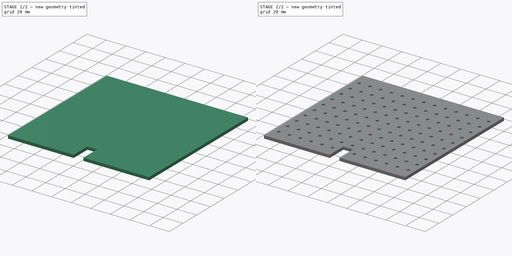
[diagram: build sequence overview — one tinted view per stage of 2, left to right]
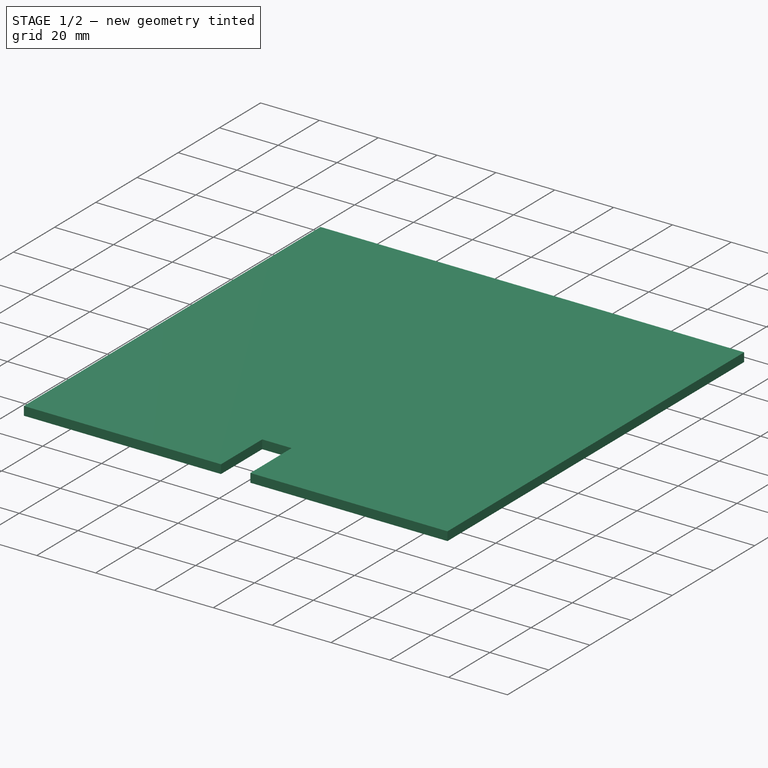
[diagram: stage 1 of 2 — iso view after this stage's code; geometry added in this stage tinted green]
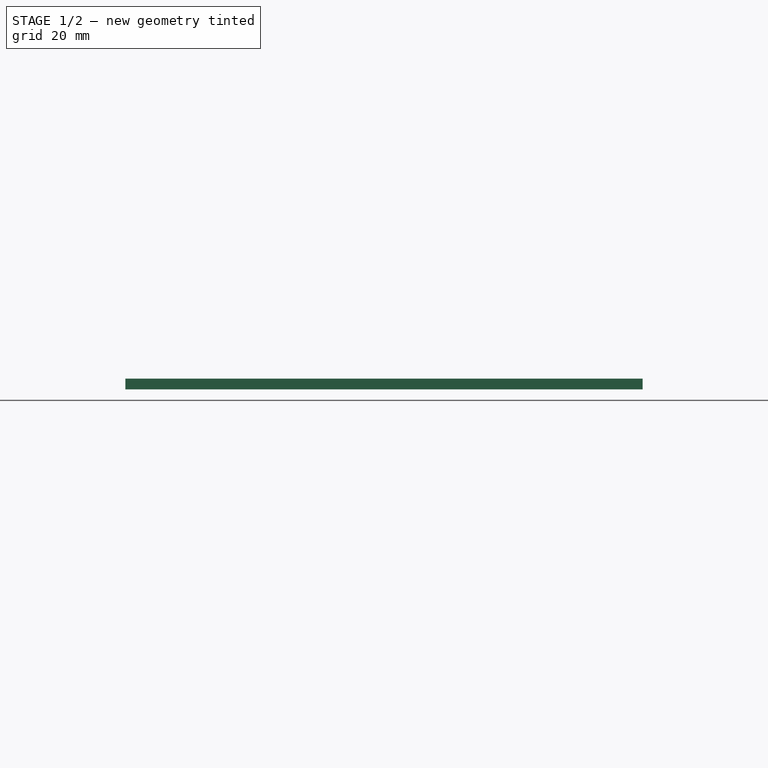
[diagram: stage 1 of 2 — front view after this stage's code; geometry added in this stage tinted green]
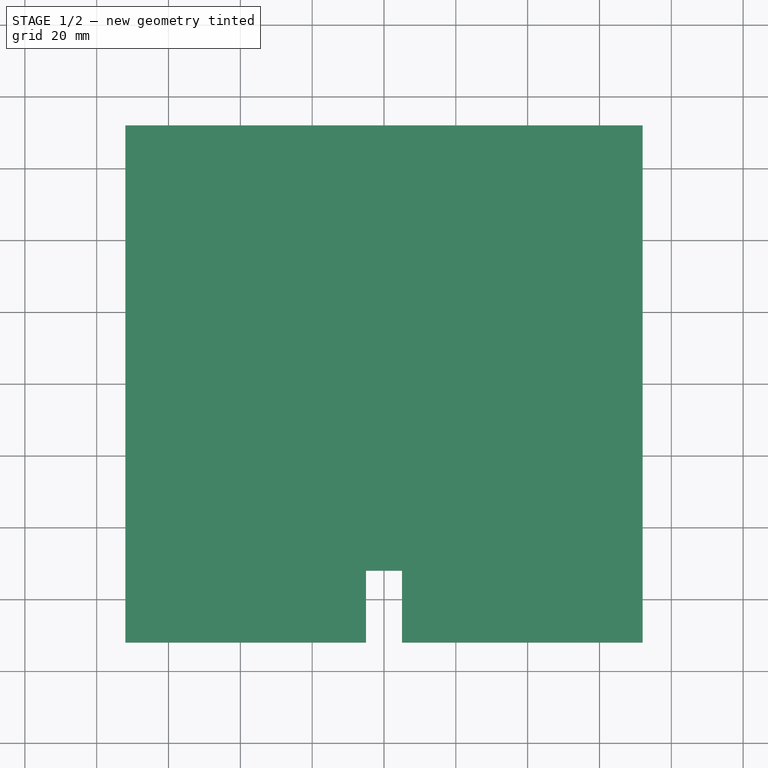
[diagram: stage 1 of 2 — top view after this stage's code; geometry added in this stage tinted green]
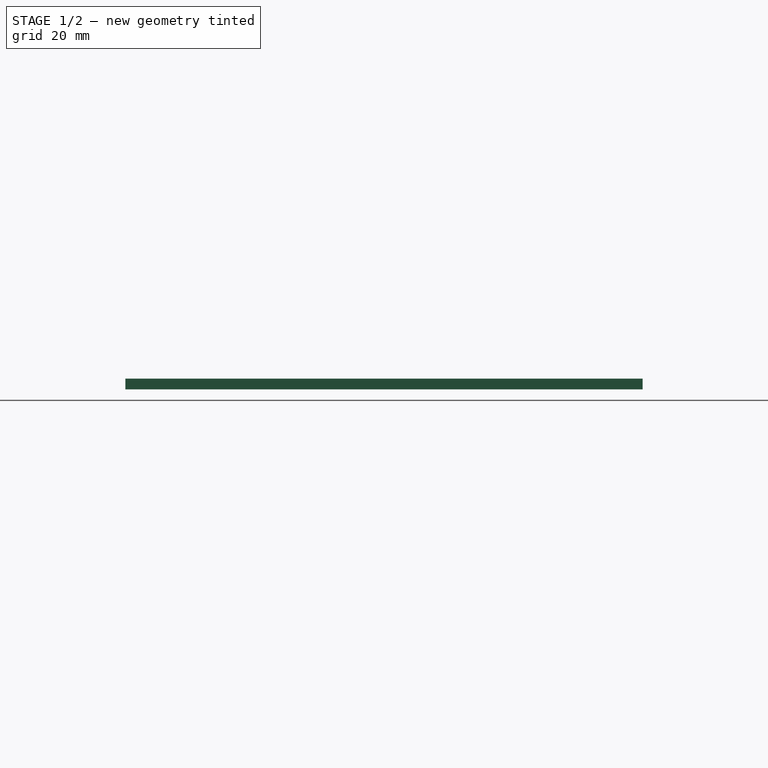
[diagram: stage 1 of 2 — right view after this stage's code; geometry added in this stage tinted green]
FCSTD DOCUMENT  (FreeCAD 1.0R39285 (Git))
Label: pi holderv2
License: All rights reserved
LicenseURL: https://en.wikipedia.org/wiki/All_rights_reserved
objects: Sketcher::SketchObject×3, Measure::MeasureDistance×3, PartDesign::Pocket×2, PartDesign::LinearPattern×2, PartDesign::Pad×1, PartDesign::MultiTransform×1, PartDesign::Body×1, App::DocumentObjectGroup×1, Measure::MeasurePython×1
note: 22 computed .brp shape members not serialized (recipe doc carries the construction recipe); baked Part::Feature solids carry a one-line shape summary decoded from their .brp

FEATURE [Sketcher::SketchObject] Sketch  label="Base"
  ArcFitTolerance = 1e-06
  AttachmentSupport = -> [XY_Plane]
  FullyConstrained = true
  MakeInternals = false
  MapMode = 5
  sketch-geometry (5):
    g0: LineSegment StartX=-72 StartY=-72 StartZ=0 EndX=72 EndY=-72 EndZ=0
    g1: LineSegment StartX=72 StartY=-72 StartZ=0 EndX=72 EndY=72 EndZ=0
    g2: LineSegment StartX=72 StartY=72 StartZ=0 EndX=-72 EndY=72 EndZ=0
    g3: LineSegment StartX=-72 StartY=72 StartZ=0 EndX=-72 EndY=-72 EndZ=0
    g4: GeomPoint [constr] X=0 Y=0 Z=0
  constraints (12):
    c: Coincident(g0,g1)
    c: Coincident(g1,g2)
    c: Coincident(g2,g3)
    c: Coincident(g3,g0)
    c: Horizontal(g0)
    c: Horizontal(g2)
    c: Vertical(g1)
    c: Vertical(g3)
    c: Symmetric(g2,g0,g4)
    c: Distance(g1,g3) = 144
    c: Distance(g0,g2) = 144
    c: Coincident(g4,g-1)
FEATURE [PartDesign::Pad] Pad
  Direction = (0,0,1)
  Length = 3
  Length2 = 10
  Profile = -> Sketch
  ReferenceAxis = -> Sketch [N_Axis]
  Refine = true
  Suppressed = false
  Type = 0
FEATURE [Sketcher::SketchObject] Sketch003  label="Hole for cabels"
  ArcFitTolerance = 1e-06
  AttachmentSupport = -> [Pad]
  ExternalGeometry = -> [Pad]
  FullyConstrained = true
  MakeInternals = false
  MapMode = 5
  Placement = pos=(0,0,3) rot=(0,0,1;0rad)
  sketch-geometry (5):
    g0: LineSegment StartX=-5 StartY=-72 StartZ=0 EndX=5 EndY=-72 EndZ=0
    g1: LineSegment StartX=5 StartY=-72 StartZ=0 EndX=5 EndY=-52 EndZ=0
    g2: LineSegment StartX=5 StartY=-52 StartZ=0 EndX=-5 EndY=-52 EndZ=0
    g3: LineSegment StartX=-5 StartY=-52 StartZ=0 EndX=-5 EndY=-72 EndZ=0
    g4: GeomPoint [constr] X=0 Y=-62 Z=0
  constraints (13):
    c: Coincident(g0,g1)
    c: Coincident(g1,g2)
    c: Coincident(g2,g3)
    c: Coincident(g3,g0)
    c: Horizontal(g0)
    c: Horizontal(g2)
    c: Vertical(g1)
    c: Vertical(g3)
    c: Symmetric(g2,g0,g4)
    c: Distance(g1,g3) = 10
    c: Distance(g0,g2) = 20
    c: PointOnObject(g4,g-2)
    c: PointOnObject(g0,g-3)
FEATURE [PartDesign::Pocket] Pocket
  BaseFeature = -> Pad
  Direction = (0,0,-1)
  Length = 5
  Length2 = 5
  Profile = -> Sketch003
  ReferenceAxis = -> Sketch003 [N_Axis]
  Refine = true
  Suppressed = false
  Type = 1
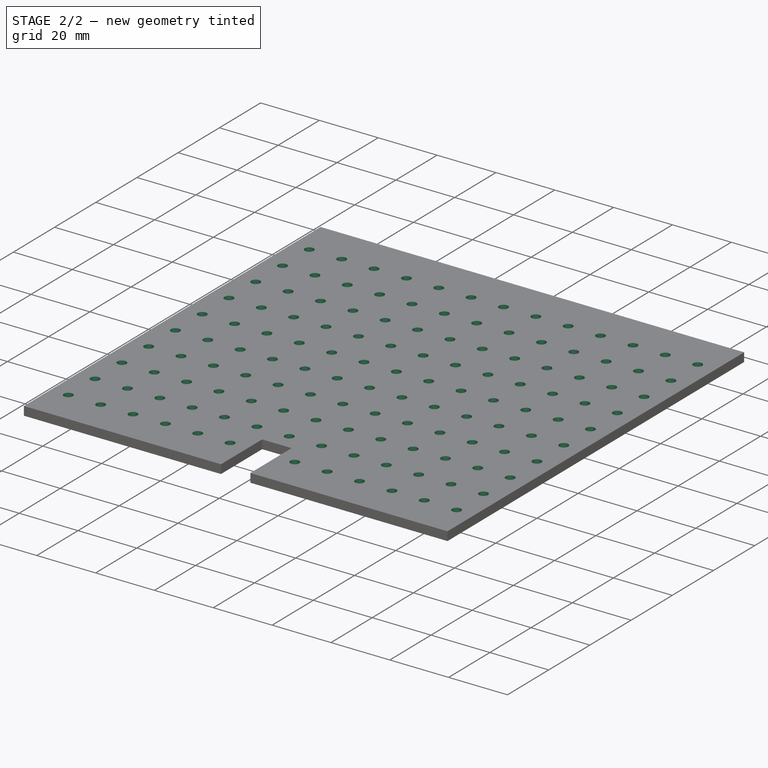
[diagram: stage 2 of 2 — iso view after this stage's code; geometry added in this stage tinted green]
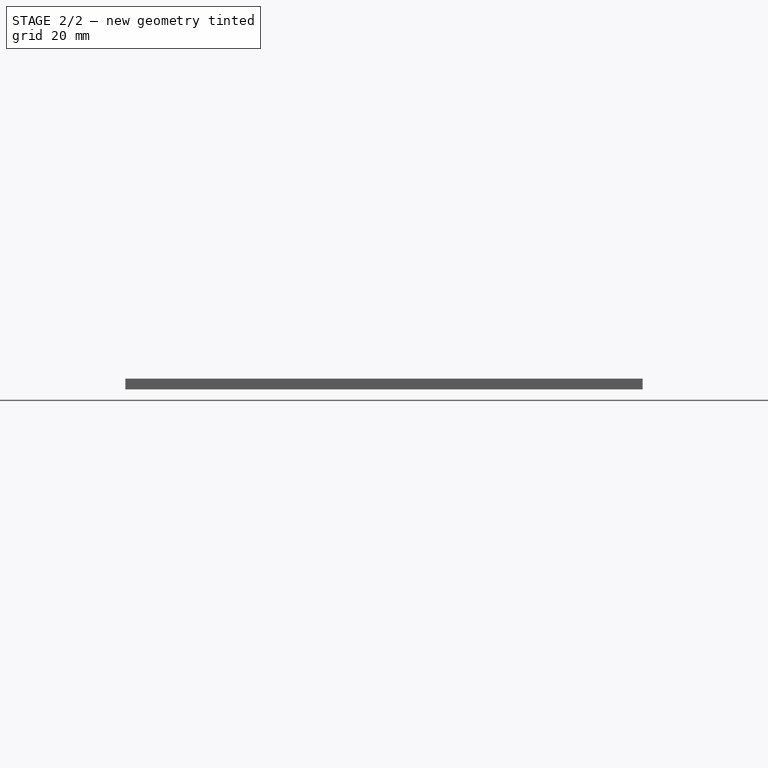
[diagram: stage 2 of 2 — front view after this stage's code; geometry added in this stage tinted green]
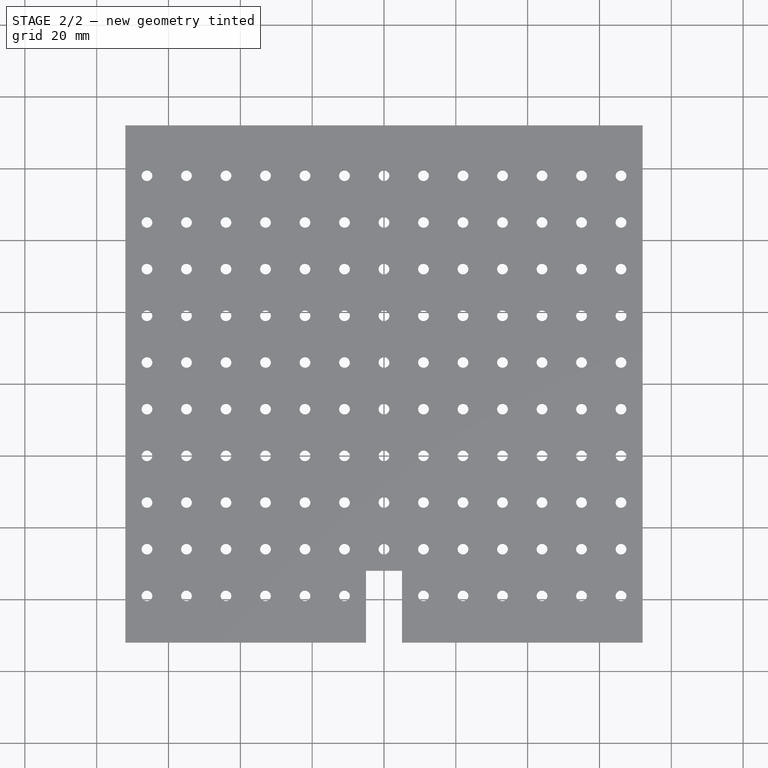
[diagram: stage 2 of 2 — top view after this stage's code; geometry added in this stage tinted green]
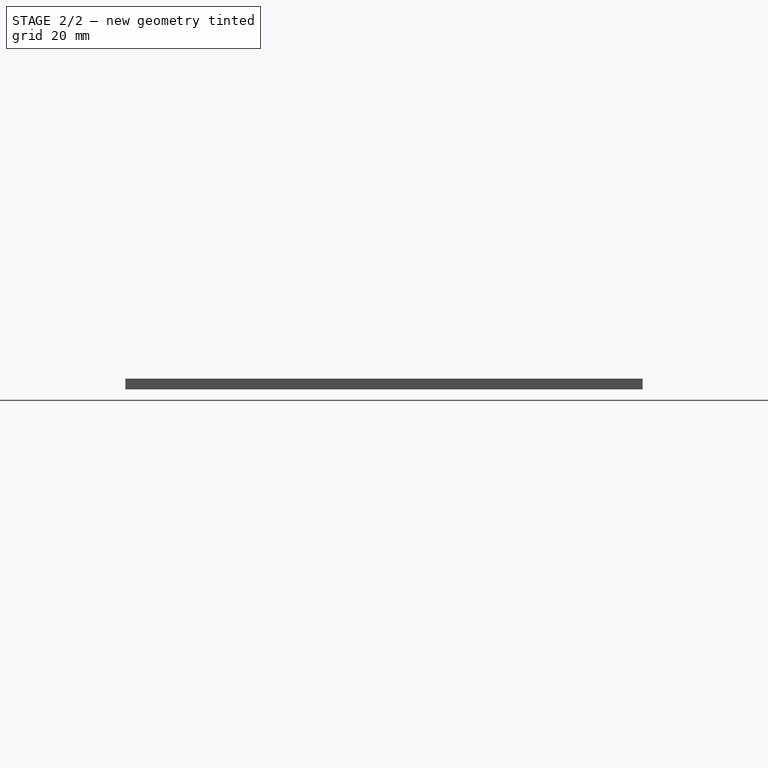
[diagram: stage 2 of 2 — right view after this stage's code; geometry added in this stage tinted green]
FEATURE [Sketcher::SketchObject] Sketch004  label="Holes for fastening"
  ArcFitTolerance = 1e-06
  FullyConstrained = true
  MakeInternals = false
  MapMode = 5
  Placement = pos=(0,0,3) rot=(0,0,1;0rad)
  sketch-geometry (1):
    g0: Circle CenterX=-66 CenterY=-59 CenterZ=0 NormalX=0 NormalY=0 NormalZ=1 AngleXU=0 Radius=1.5
  constraints (3):
    c: Diameter(g0) = 3
    c: Distance(g0,g-4) = 6
    c: Distance(g0,g-3) = 13
FEATURE [PartDesign::Pocket] Pocket002
  BaseFeature = -> Pocket
  Direction = (0,0,-1)
  Length = 5
  Length2 = 5
  Profile = -> Sketch004
  ReferenceAxis = -> Sketch004 [N_Axis]
  Refine = true
  Suppressed = false
  Type = 1
FEATURE [PartDesign::LinearPattern] LinearPattern
  Direction = -> Sketch004 [H_Axis]
  Length = 132
  Mode = 0
  Occurrences = 13
  Offset = 11
  Refine = true
  Suppressed = false
  TransformMode = 0
FEATURE [PartDesign::LinearPattern] LinearPattern001
  Direction = -> Y_Axis
  Length = 117
  Mode = 0
  Occurrences = 10
  Offset = 13
  Refine = true
  Suppressed = false
  TransformMode = 0
FEATURE [PartDesign::MultiTransform] MultiTransform
  BaseFeature = -> Pocket002
  Originals = -> [Pocket002]
  Refine = true
  Suppressed = false
  TransformMode = 0
  Transformations = -> [LinearPattern,LinearPattern001]
FEATURE [PartDesign::Body] Body
  AllowCompound = false
  Group = -> [Sketch,Pad,Sketch003,Pocket,Sketch004,Pocket002,MultiTransform,LinearPattern,LinearPattern001]
  Origin = -> Origin
  Tip = -> MultiTransform
FEATURE [Measure::MeasureDistance] Distance  label="Distance: 17,03 mm"
  Distance = 17.0294
  DistanceX = 11
  DistanceY = 13
  DistanceZ = 1.3e-15
  Element1 = -> Body [MultiTransform.Edge231]
  Element2 = -> Body [MultiTransform.Edge228]
  Position1 = (-55,58,3)
  Position2 = (-66,45,3)
FEATURE [App::DocumentObjectGroup] Measurements
  Group = -> [Distance]
FEATURE [Measure::MeasurePython] Center_of_Mass  label="Center_of_Mass: COM
X: -0,00 mm
Y: 0,61 mm
Z: 1,50 mm"  # WARN: FeaturePython — macro-defined, semantics opaque (R4)
  Element = -> Body [MultiTransform.]
  Placement = pos=(9e-16,0.634036,1.5) rot=(0,0,1;0rad)
  Result = (9e-16,0.634036,1.5)
FEATURE [Measure::MeasureDistance] Distance001  label="Distance001: 13,00 mm"
  Distance = 13
  DistanceX = 0
  DistanceY = 13
  DistanceZ = 1.3e-15
  Element1 = -> Body [MultiTransform.Edge233]
  Element2 = -> Body [MultiTransform.Edge232]
  Position1 = (-44,58,3)
  Position2 = (-44,45,3)
FEATURE [Measure::MeasureDistance] Distance002  label="Distance002: 11,00 mm"
  Distance = 11
  DistanceX = 11
  DistanceY = 0
  DistanceZ = 0
  Element1 = -> Body [MultiTransform.Edge234]
  Element2 = -> Body [MultiTransform.Edge227]
  Position1 = (-33,32,3)
  Position2 = (-44,32,3)
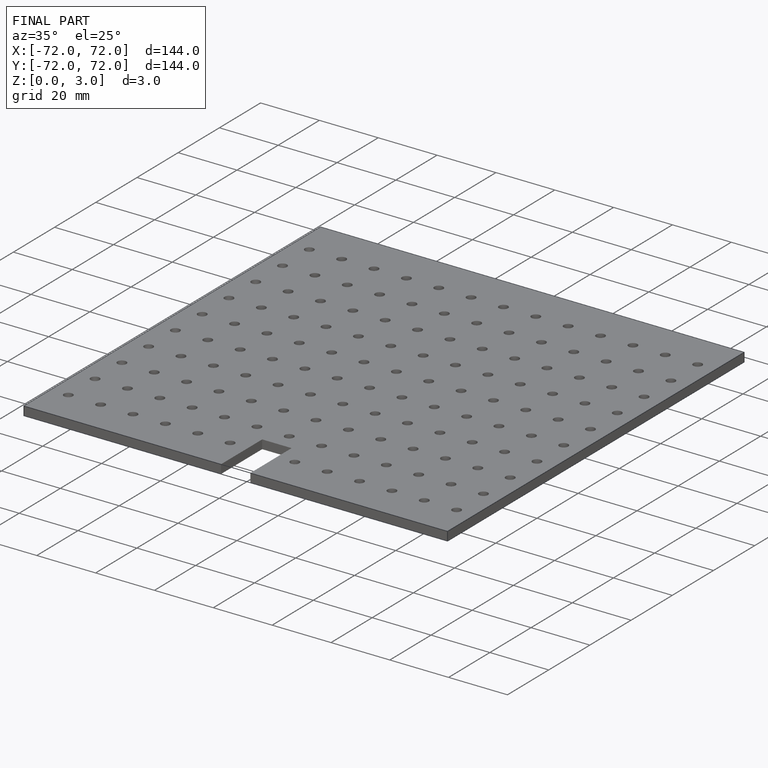
[diagram: finished part — iso view with bounding-box wireframe]
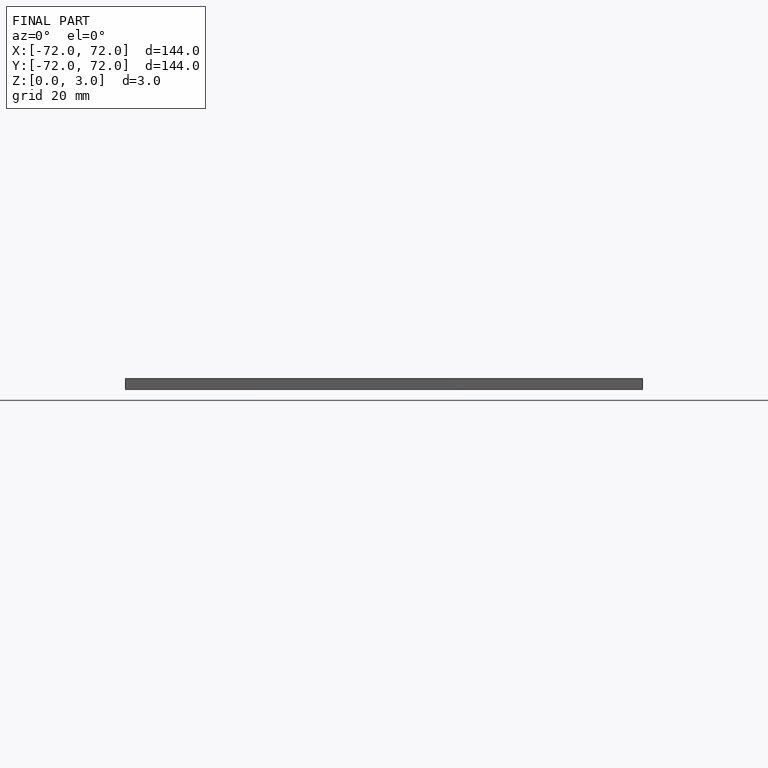
[diagram: finished part — front view with bounding-box wireframe]
